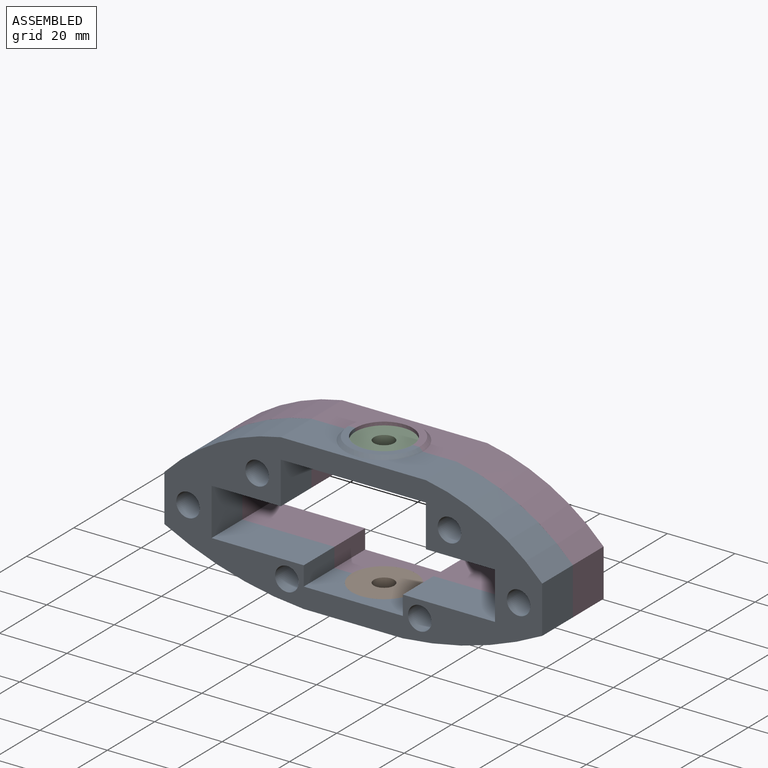
[diagram: assembled view]
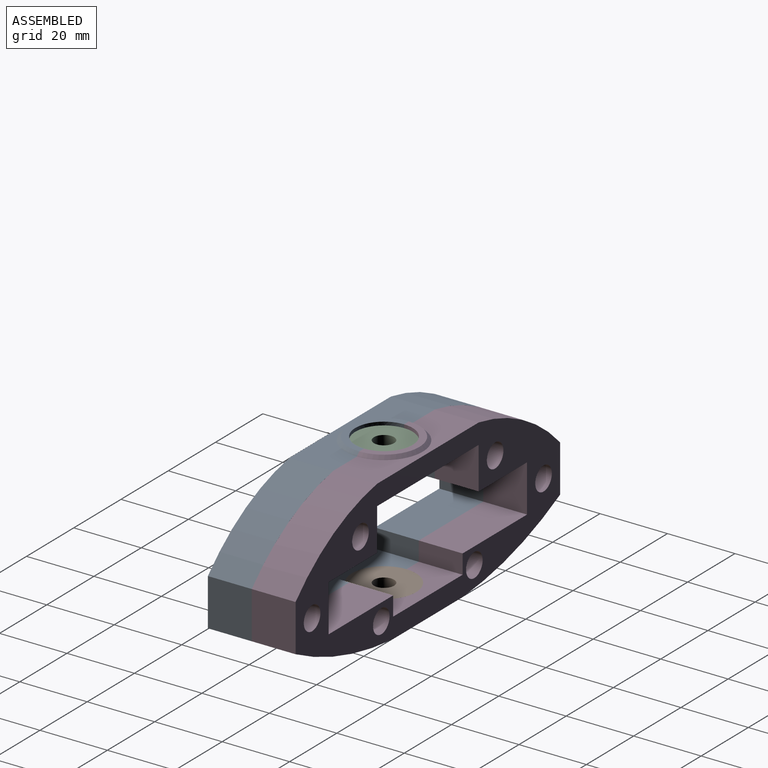
[diagram: assembled view, second angle]
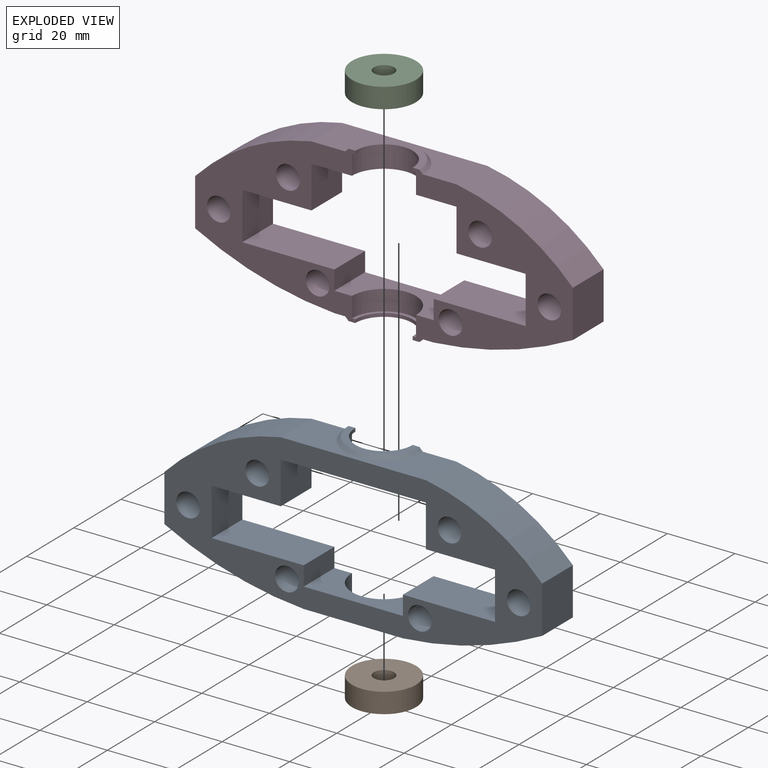
[diagram: exploded view]
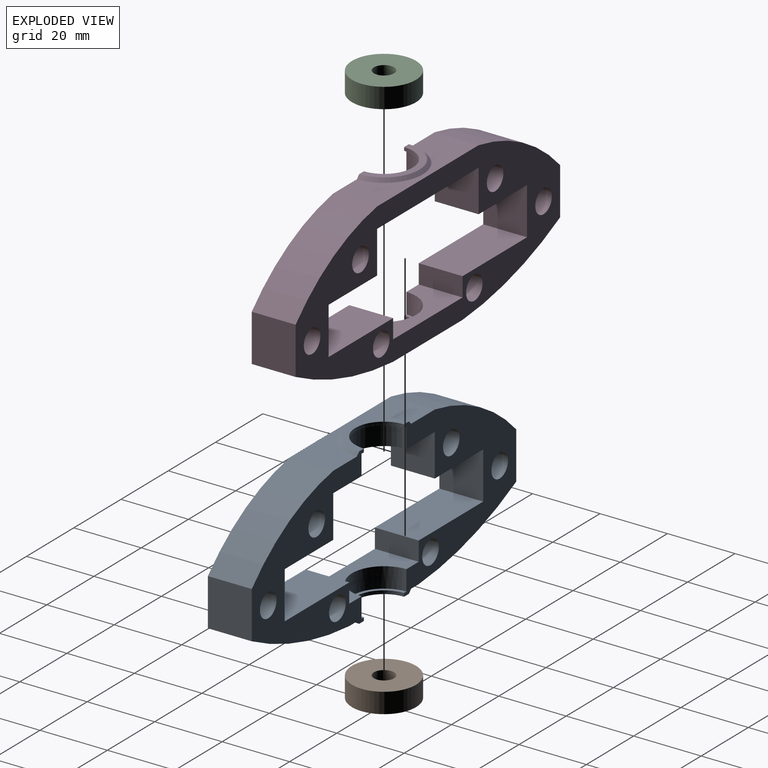
[diagram: exploded view, second angle]
ASSEMBLY  parts=4 mates=7
PART A: 45 faces, bbox 112x13x46.2 mm
  f0: cylinder r=3.5mm len=13mm, axis (0,-1,0), area 142.9mm2, adj f1,f13,f15
  f1: cylinder r=3.5mm len=13mm, axis (0,-1,0), area 142.9mm2, adj f0,f13,f15
  f2: cylinder r=3.5mm len=13mm, axis (0,-1,0), area 142.9mm2, adj f3,f13,f15
  f3: cylinder r=3.5mm len=13mm, axis (0,-1,0), area 142.9mm2, adj f2,f13,f15
  f4: cylinder r=3.5mm len=13mm, axis (0,-1,0), area 142.9mm2, adj f5,f13,f15
  f5: cylinder r=3.5mm len=13mm, axis (0,-1,0), area 142.9mm2, adj f4,f13,f15
  f6: plane 20.5x13mm, normal (0,0,-1), area 266.5mm2, adj f7,f12,f13,f15
  f7: plane 14x13mm, normal (-1,0,0), area 182mm2, adj f6,f8,f13,f15
  f8: plane 27.3x13mm, normal (0,0,1), area 354.9mm2, adj f7,f11,f13,f15
  f9: plane 14x13mm, normal (1,0,0), area 182mm2, adj f10,f13,f14,f15
  f10: cylinder r=104.95mm len=41.3mm, axis (0,1,0), area 562mm2, adj f9,f13,f15,f24
  f11: plane 13x5.7mm, normal (-1,0,0), area 74.1mm2, adj f8,f13,f15,f30
  f12: plane 13x12.5mm, normal (-1,0,0), area 162.5mm2, adj f6,f13,f15,f36
  f13: plane 47.5x46.2mm, normal (0,1,0), area 895.7mm2, adj f0,f1,f2,f3,f4,f5,f6,f7
  f14: cylinder r=62.4mm len=34.5mm, axis (0,1,0), area 517.7mm2, adj f9,f13,f15,f42
  f15: plane 112x44.2mm, normal (0,-1,0), area 2009.4mm2, adj f0,f1,f2,f3,f4,f5,f6,f7
  f16: cylinder r=3.5mm len=13mm, axis (0,-1,0), area 142.9mm2, adj f15,f17,f44
  f17: cylinder r=3.5mm len=13mm, axis (0,-1,0), area 142.9mm2, adj f15,f16,f44
  f18: cylinder r=3.5mm len=13mm, axis (0,-1,0), area 142.9mm2, adj f15,f19,f44
  f19: cylinder r=3.5mm len=13mm, axis (0,-1,0), area 142.9mm2, adj f15,f18,f44
  f20: cylinder r=3.5mm len=13mm, axis (0,-1,0), area 142.9mm2, adj f15,f21,f44
  f21: cylinder r=3.5mm len=13mm, axis (0,-1,0), area 142.9mm2, adj f15,f20,f44
  f22: plane 14x13mm, normal (-1,0,0), area 182mm2, adj f15,f23,f43,f44
  f23: cylinder r=104.95mm len=41.3mm, axis (0,1,0), area 562mm2, adj f15,f22,f24,f44
  f24: plane 29.4x13mm, normal (0,0,-1), area 174.5mm2, adj f10,f13,f15,f23,f25,f44
  f25: cone r=11mm half-angle=45deg, axis (0,0,1), area 48.9mm2, adj f13,f24,f26,f44
  f26: plane 21x10.69mm, normal (0,0,-1), area 59.7mm2, adj f13,f25,f27,f44
  f27: cylinder r=8.5mm len=17mm, axis (0,0,-1), area 26.7mm2, adj f13,f26,f28,f44
  f28: plane 19x9.68mm, normal (0,0,1), area 28.3mm2, adj f13,f27,f29,f44
  f29: cylinder r=9.5mm len=19mm, axis (0,0,1), area 179.1mm2, adj f13,f28,f30,f44
  f30: plane 29.4x13mm, normal (0,0,1), area 240.4mm2, adj f11,f13,f15,f29,f31,f44
  f31: plane 13x5.7mm, normal (1,0,0), area 74.1mm2, adj f15,f30,f32,f44
  f32: plane 27.3x13mm, normal (0,0,1), area 354.9mm2, adj f15,f31,f33,f44
  f33: plane 14x13mm, normal (1,0,0), area 182mm2, adj f15,f32,f34,f44
  f34: plane 20.5x13mm, normal (0,0,-1), area 266.5mm2, adj f15,f33,f35,f44
  f35: plane 13x12.5mm, normal (1,0,0), area 162.5mm2, adj f15,f34,f36,f44
  f36: plane 43x13mm, normal (0,0,-1), area 417.2mm2, adj f12,f13,f15,f35,f37,f44
  f37: cylinder r=9.5mm len=19mm, axis (0,0,1), area 179.1mm2, adj f13,f36,f38,f44
  f38: plane 19x9.68mm, normal (0,0,-1), area 28.3mm2, adj f13,f37,f39,f44
  f39: cylinder r=8.5mm len=17mm, axis (0,0,1), area 26.7mm2, adj f13,f38,f40,f44
  f40: plane 21x10.69mm, normal (0,0,1), area 59.7mm2, adj f13,f39,f41,f44
  f41: cone r=11mm half-angle=45deg, axis (0,0,-1), area 48.9mm2, adj f13,f40,f42,f44
  f42: plane 43x13mm, normal (0,0,1), area 351.3mm2, adj f13,f14,f15,f41,f43,f44
  f43: cylinder r=62.4mm len=34.5mm, axis (0,1,0), area 517.7mm2, adj f15,f22,f42,f44
  f44: plane 47.5x46.2mm, normal (0,1,0), area 895.7mm2, adj f16,f17,f18,f19,f20,f21,f22,f23
PART B: 6 faces, bbox 19x6x19.4 mm
  f0: cylinder r=9.5mm len=19mm, axis (0,1,0), area 179.1mm2, adj f1,f2,f4
  f1: cylinder r=9.5mm len=19mm, axis (0,1,0), area 179.1mm2, adj f0,f2,f4
  f2: plane 19.35x19mm, normal (0,-1,0), area 255.3mm2, adj f0,f1,f3,f5
  f3: cylinder r=3mm len=6mm, axis (0,1,0), area 56.5mm2, adj f2,f4,f5
  f4: plane 19.35x19mm, normal (0,1,0), area 255.3mm2, adj f0,f1,f3,f5
  f5: cylinder r=3mm len=6mm, axis (0,1,0), area 56.5mm2, adj f2,f3,f4
PART C: same geometry as B
PART D: same geometry as A
PLACE A at identity fixed
PLACE B rot(axis=(1,0,0),90deg) t=(0,0,-18.7)mm
PLACE C rot(axis=(0,-0.71,-0.71),180deg) t=(0,0,19.5)mm
PLACE D rot(axis=(0,0,1),180deg) t=(0,0,0)mm
MATE cylindrical B.f0 <-> A.f25  axis (0,0,1) through (0,0,-18.7)mm
MATE planar A.f42 <-> D.f42  axis (0,0,1) through (21.5,-6.5,25.5)mm
MATE planar D.f13 <-> A.f13  axis (0,-1,0) through (-33.86,0,3.57)mm
MATE cylindrical C.f0 <-> A.f25  axis (0,0,1) through (0,0,22.5)mm
MATE planar B.f0 <-> D.f30  axis (0,0,1) through (0,0,-12.7)mm
MATE planar C.f2 <-> A.f36  axis (0,0,-1) through (0,3,19.5)mm
MATE planar D.f22 <-> A.f9  axis (1,0,0) through (56,6.5,0)mm
